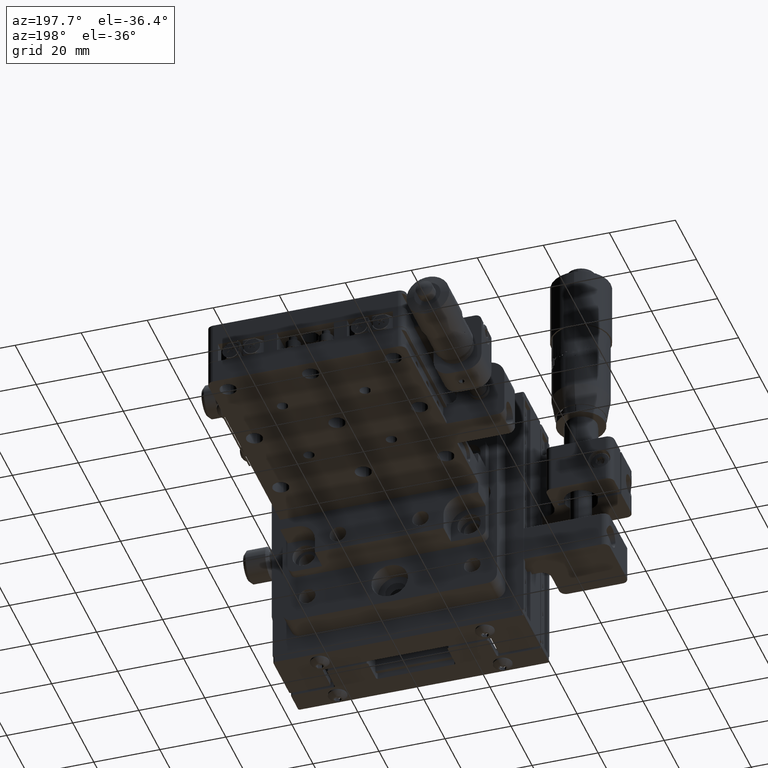
[diagram: clean part render]
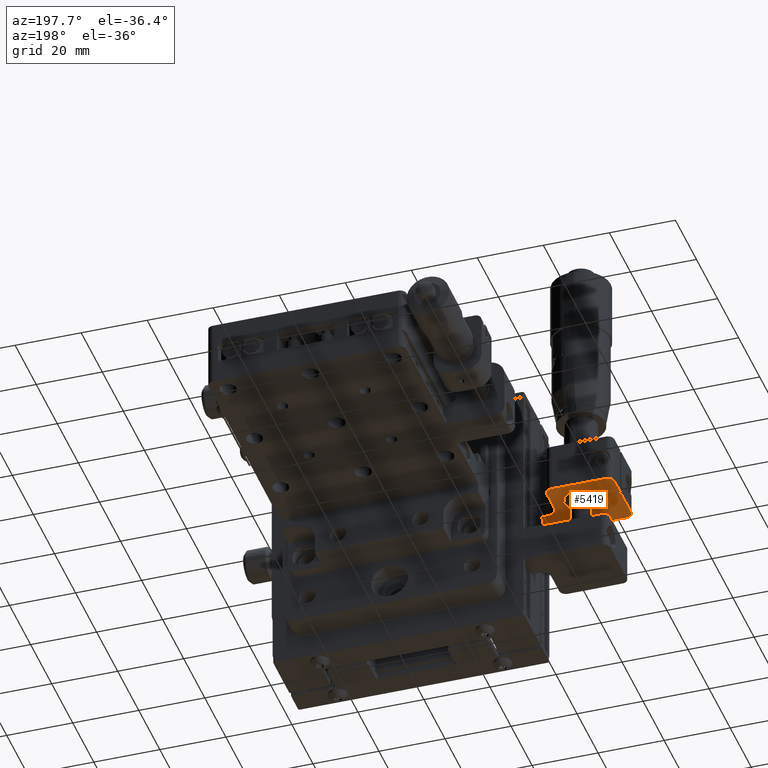
[diagram: same view with one face highlighted and labeled with its STEP entity id]
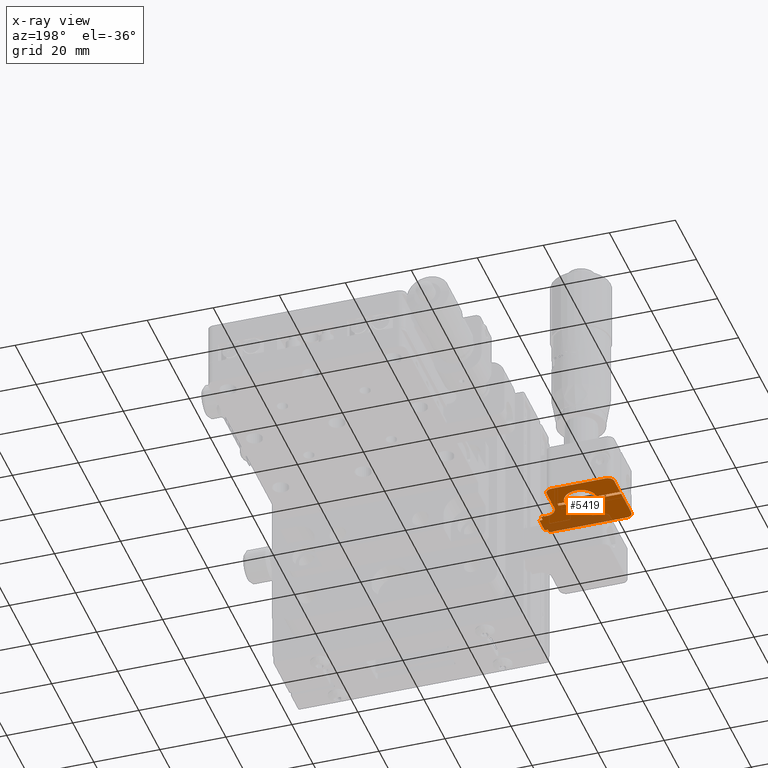
[diagram: x-ray of the same camera — body ghosted, the highlighted face saturated]
A machine part, auxiliary view. The second image highlights one B-rep face of the part: STEP entity #5419.
The next image is the same camera in x-ray: the body ghosted, the highlighted face saturated — about 22% of this face is hidden behind the body in this view.
In plain terms, the highlighted planar face has unit normal (-0, 0, -1).
Its self-contained STEP definition (entity closure, byte-faithful):
#291 = VECTOR ( 'NONE', #62635, 1000.000000000000000 ) ;
#805 = VERTEX_POINT ( 'NONE', #44533 ) ;
#825 = ORIENTED_EDGE ( 'NONE', *, *, #48898, .T. ) ;
#850 = LINE ( 'NONE', #36030, #39668 ) ;
#1160 = VERTEX_POINT ( 'NONE', #36700 ) ;
#1497 = CIRCLE ( 'NONE', #43042, 2.000000000000001800 ) ;
#1977 = ORIENTED_EDGE ( 'NONE', *, *, #40356, .T. ) ;
#2390 = DIRECTION ( 'NONE',  ( 1.049400401618836200E-015, -1.000000000000000000, -5.551115123125770400E-017 ) ) ;
#3502 = VERTEX_POINT ( 'NONE', #46612 ) ;
#3876 = AXIS2_PLACEMENT_3D ( 'NONE', #6916, #42287, #11994 ) ;
#4368 = CIRCLE ( 'NONE', #21253, 3.000000000000002700 ) ;
#4536 = EDGE_CURVE ( 'NONE', #16811, #21917, #56704, .T. ) ;
#4625 = LINE ( 'NONE', #41651, #43382 ) ;
#4947 = CARTESIAN_POINT ( 'NONE',  ( -37.00000000000005000, 1.499999999999361200, 6.499999999999933400 ) ) ;
#5017 = EDGE_CURVE ( 'NONE', #18632, #29193, #4368, .T. ) ;
#5035 = ORIENTED_EDGE ( 'NONE', *, *, #45449, .T. ) ;
#5047 = VECTOR ( 'NONE', #12941, 1000.000000000000000 ) ;
#5419 = ADVANCED_FACE ( 'NONE', ( #20887 ), #47163, .T. ) ;
#5684 = ORIENTED_EDGE ( 'NONE', *, *, #5017, .T. ) ;
#5712 = DIRECTION ( 'NONE',  ( 1.000000000000000000, 2.145893718534002600E-015, -3.538501282865086700E-016 ) ) ;
#5890 = ORIENTED_EDGE ( 'NONE', *, *, #21869, .T. ) ;
#5900 = CARTESIAN_POINT ( 'NONE',  ( -63.50000000000007100, 12.69999999999935100, 6.499999999999944000 ) ) ;
#6230 = AXIS2_PLACEMENT_3D ( 'NONE', #17816, #53177, #22924 ) ;
#6591 = CARTESIAN_POINT ( 'NONE',  ( -61.50000000000005700, 2.199999999999329200, 6.499999999999942300 ) ) ;
#6684 = VECTOR ( 'NONE', #34515, 1000.000000000000000 ) ;
#6916 = CARTESIAN_POINT ( 'NONE',  ( -51.50000000000005700, 12.19999999999936500, 6.499999999999939600 ) ) ;
#7318 = CARTESIAN_POINT ( 'NONE',  ( -38.00000000000004300, 0.1999999999993326600, 6.499999999999934300 ) ) ;
#8241 = EDGE_CURVE ( 'NONE', #30972, #16811, #54962, .T. ) ;
#9601 = CARTESIAN_POINT ( 'NONE',  ( -46.52506281446695600, 12.69999999999937000, 6.499999999999937800 ) ) ;
#10609 = CARTESIAN_POINT ( 'NONE',  ( -38.00000000000005700, 7.999999999999377400, 6.499999999999934300 ) ) ;
#11167 = ORIENTED_EDGE ( 'NONE', *, *, #8241, .T. ) ;
#11456 = CARTESIAN_POINT ( 'NONE',  ( -38.00000000000005000, 6.499999999999375600, 6.499999999999934300 ) ) ;
#11661 = DIRECTION ( 'NONE',  ( -1.000000000000000000, -1.301042606982604100E-015, 4.336808689942013800E-016 ) ) ;
#11672 = LINE ( 'NONE', #29985, #38611 ) ;
#11994 = DIRECTION ( 'NONE',  ( -1.000000000000000000, -1.396345096814188600E-015, 3.538501282865087200E-016 ) ) ;
#12146 = ORIENTED_EDGE ( 'NONE', *, *, #49129, .T. ) ;
#12427 = CARTESIAN_POINT ( 'NONE',  ( -56.47493718553316500, 12.69999999999935600, 6.499999999999941400 ) ) ;
#12560 = CIRCLE ( 'NONE', #55142, 1.999999999999994900 ) ;
#12710 = VERTEX_POINT ( 'NONE', #12427 ) ;
#12822 = LINE ( 'NONE', #27845, #65038 ) ;
#12941 = DIRECTION ( 'NONE',  ( -1.080940828454778300E-015, 1.000000000000000000, 5.551115123125771600E-017 ) ) ;
#13555 = AXIS2_PLACEMENT_3D ( 'NONE', #21304, #56656, #26403 ) ;
#13930 = CARTESIAN_POINT ( 'NONE',  ( -40.00000000000005700, 7.999999999999375600, 6.499999999999935200 ) ) ;
#14092 = EDGE_CURVE ( 'NONE', #59019, #12710, #16388, .T. ) ;
#14621 = VECTOR ( 'NONE', #31370, 1000.000000000000000 ) ;
#14665 = ORIENTED_EDGE ( 'NONE', *, *, #30721, .T. ) ;
#15481 = LINE ( 'NONE', #7318, #27381 ) ;
#15824 = VERTEX_POINT ( 'NONE', #61119 ) ;
#16157 = CARTESIAN_POINT ( 'NONE',  ( -63.50000000000007100, 18.19999999999937800, 6.499999999999944000 ) ) ;
#16388 = CIRCLE ( 'NONE', #13555, 4.999999999999997300 ) ;
#16811 = VERTEX_POINT ( 'NONE', #59651 ) ;
#17618 = CARTESIAN_POINT ( 'NONE',  ( -40.00000000000005700, 10.99999999999937500, 6.499999999999936900 ) ) ;
#17816 = CARTESIAN_POINT ( 'NONE',  ( -51.50000000000005700, 12.19999999999936500, 6.499999999999939600 ) ) ;
#18034 = ORIENTED_EDGE ( 'NONE', *, *, #56618, .T. ) ;
#18166 = EDGE_CURVE ( 'NONE', #54078, #18632, #33539, .T. ) ;
#18252 = EDGE_CURVE ( 'NONE', #48006, #54567, #32708, .T. ) ;
#18492 = VERTEX_POINT ( 'NONE', #54066 ) ;
#18532 = CARTESIAN_POINT ( 'NONE',  ( -38.00000000000005000, 6.499999999999375600, 6.499999999999934300 ) ) ;
#18632 = VERTEX_POINT ( 'NONE', #55380 ) ;
#20145 = CARTESIAN_POINT ( 'NONE',  ( -38.00000000000004300, 1.499999999999359400, 6.499999999999934300 ) ) ;
#20887 = FACE_OUTER_BOUND ( 'NONE', #34626, .T. ) ;
#20933 = AXIS2_PLACEMENT_3D ( 'NONE', #6591, #41957, #11661 ) ;
#21047 = LINE ( 'NONE', #23236, #46356 ) ;
#21253 = AXIS2_PLACEMENT_3D ( 'NONE', #17618, #52964, #22710 ) ;
#21304 = CARTESIAN_POINT ( 'NONE',  ( -51.50000000000005700, 12.19999999999936500, 6.499999999999939600 ) ) ;
#21869 = EDGE_CURVE ( 'NONE', #15824, #59019, #25451, .T. ) ;
#21917 = VERTEX_POINT ( 'NONE', #4947 ) ;
#22574 = VERTEX_POINT ( 'NONE', #55692 ) ;
#22594 = DIRECTION ( 'NONE',  ( 1.396345096814196700E-015, -1.000000000000000000, -5.551115123125782700E-017 ) ) ;
#22710 = DIRECTION ( 'NONE',  ( -1.000000000000000000, -1.156482317317870300E-015, 2.891205793294675900E-016 ) ) ;
#22924 = DIRECTION ( 'NONE',  ( -1.000000000000000000, -1.387778780781446500E-015, 3.469446951953616200E-016 ) ) ;
#23017 = CARTESIAN_POINT ( 'NONE',  ( -61.50000000000007800, 18.19999999999937800, 6.499999999999943200 ) ) ;
#23236 = CARTESIAN_POINT ( 'NONE',  ( -61.50000000000005000, 0.1999999999992996800, 6.499999999999942300 ) ) ;
#23340 = EDGE_CURVE ( 'NONE', #12710, #40522, #11672, .T. ) ;
#24430 = EDGE_CURVE ( 'NONE', #805, #48006, #21047, .T. ) ;
#25032 = EDGE_CURVE ( 'NONE', #40522, #51901, #58842, .T. ) ;
#25451 = LINE ( 'NONE', #9601, #64157 ) ;
#25590 = LINE ( 'NONE', #10609, #52421 ) ;
#26403 = DIRECTION ( 'NONE',  ( -1.000000000000000000, -1.387778780781446500E-015, 3.469446951953616200E-016 ) ) ;
#26785 = VERTEX_POINT ( 'NONE', #56695 ) ;
#27381 = VECTOR ( 'NONE', #22594, 1000.000000000000000 ) ;
#27513 = ORIENTED_EDGE ( 'NONE', *, *, #42803, .T. ) ;
#27779 = LINE ( 'NONE', #11456, #39622 ) ;
#27845 = CARTESIAN_POINT ( 'NONE',  ( -63.50000000000007100, 11.69999999999934900, 6.499999999999944000 ) ) ;
#28025 = CARTESIAN_POINT ( 'NONE',  ( -63.50000000000007100, 18.19999999999937800, 6.499999999999944000 ) ) ;
#28109 = DIRECTION ( 'NONE',  ( -1.000000000000000000, -1.734723475976811400E-015, 4.336808689942028600E-016 ) ) ;
#28314 = DIRECTION ( 'NONE',  ( -1.000000000000000000, -1.396345096814188800E-015, 3.538501282865087700E-016 ) ) ;
#29193 = VERTEX_POINT ( 'NONE', #13930 ) ;
#29234 = CARTESIAN_POINT ( 'NONE',  ( -45.00000000000007100, 20.19999999999942000, 6.499999999999937800 ) ) ;
#29550 = ORIENTED_EDGE ( 'NONE', *, *, #14092, .T. ) ;
#29985 = CARTESIAN_POINT ( 'NONE',  ( -63.50000000000007100, 12.69999999999935100, 6.499999999999944000 ) ) ;
#30019 = CARTESIAN_POINT ( 'NONE',  ( -45.00000000000007100, 18.19999999999940200, 6.499999999999937800 ) ) ;
#30135 = CARTESIAN_POINT ( 'NONE',  ( -46.52506281446695600, 12.69999999999937000, 6.499999999999937800 ) ) ;
#30721 = EDGE_CURVE ( 'NONE', #47430, #36659, #33621, .T. ) ;
#30972 = VERTEX_POINT ( 'NONE', #18532 ) ;
#31370 = DIRECTION ( 'NONE',  ( 1.000000000000000000, 1.396345096814188600E-015, -3.538501282865087200E-016 ) ) ;
#32300 = CARTESIAN_POINT ( 'NONE',  ( -63.50000000000005700, 2.199999999999325600, 6.499999999999943200 ) ) ;
#32369 = CARTESIAN_POINT ( 'NONE',  ( -44.50000000000006400, 12.69999999999937400, 6.499999999999936900 ) ) ;
#32708 = CIRCLE ( 'NONE', #20933, 2.000000000000001800 ) ;
#32746 = CARTESIAN_POINT ( 'NONE',  ( -37.00000000000005000, 1.499999999999361200, 6.499999999999933400 ) ) ;
#33130 = DIRECTION ( 'NONE',  ( -1.396345096814196700E-015, 1.000000000000000000, 5.551115123125782700E-017 ) ) ;
#33539 = LINE ( 'NONE', #61012, #45373 ) ;
#33621 = LINE ( 'NONE', #29234, #6684 ) ;
#33891 = DIRECTION ( 'NONE',  ( 1.000000000000000000, 8.561780258686119800E-016, -3.538501282865087700E-016 ) ) ;
#34515 = DIRECTION ( 'NONE',  ( 1.000000000000000000, 1.396345096814188600E-015, -3.538501282865087200E-016 ) ) ;
#34626 = EDGE_LOOP ( 'NONE', ( #1977, #36128, #18034, #5890, #29550, #41798, #45535, #62121, #14665, #825, #53697, #5684, #61779, #45325, #11167, #50638, #12146, #5035, #38314, #46617, #27513, #55478 ) ) ;
#35103 = DIRECTION ( 'NONE',  ( 1.000000000000000000, 1.734723475976805500E-015, -4.336808689942013800E-016 ) ) ;
#36030 = CARTESIAN_POINT ( 'NONE',  ( -46.52506281446695600, 11.69999999999936900, 6.499999999999937800 ) ) ;
#36128 = ORIENTED_EDGE ( 'NONE', *, *, #54031, .T. ) ;
#36431 = CARTESIAN_POINT ( 'NONE',  ( -37.00000000000005000, 6.499999999999376500, 6.499999999999934300 ) ) ;
#36659 = VERTEX_POINT ( 'NONE', #42330 ) ;
#36700 = CARTESIAN_POINT ( 'NONE',  ( -63.50000000000007100, 11.69999999999934900, 6.499999999999944000 ) ) ;
#38314 = ORIENTED_EDGE ( 'NONE', *, *, #24430, .T. ) ;
#38611 = VECTOR ( 'NONE', #65287, 1000.000000000000000 ) ;
#39622 = VECTOR ( 'NONE', #41726, 1000.000000000000000 ) ;
#39668 = VECTOR ( 'NONE', #5712, 1000.000000000000000 ) ;
#40356 = EDGE_CURVE ( 'NONE', #26785, #18492, #47333, .T. ) ;
#40522 = VERTEX_POINT ( 'NONE', #5900 ) ;
#40886 = DIRECTION ( 'NONE',  ( 1.226274167796863100E-015, -1.000000000000000000, -5.551115123125776500E-017 ) ) ;
#41362 = VERTEX_POINT ( 'NONE', #20145 ) ;
#41651 = CARTESIAN_POINT ( 'NONE',  ( -38.00000000000004300, 1.499999999999359400, 6.499999999999934300 ) ) ;
#41726 = DIRECTION ( 'NONE',  ( 1.396345096814196700E-015, -1.000000000000000000, -5.551115123125782700E-017 ) ) ;
#41798 = ORIENTED_EDGE ( 'NONE', *, *, #23340, .T. ) ;
#41957 = DIRECTION ( 'NONE',  ( -3.538501282865090600E-016, 5.551115123125782700E-017, -1.000000000000000000 ) ) ;
#42287 = DIRECTION ( 'NONE',  ( -3.538501282865088200E-016, 5.551115123125782700E-017, -1.000000000000000000 ) ) ;
#42330 = CARTESIAN_POINT ( 'NONE',  ( -45.00000000000007100, 20.19999999999942000, 6.499999999999937800 ) ) ;
#42803 = EDGE_CURVE ( 'NONE', #54567, #1160, #12822, .T. ) ;
#43042 = AXIS2_PLACEMENT_3D ( 'NONE', #30019, #65328, #35103 ) ;
#43245 = VECTOR ( 'NONE', #2390, 1000.000000000000000 ) ;
#43382 = VECTOR ( 'NONE', #46546, 1000.000000000000000 ) ;
#44533 = CARTESIAN_POINT ( 'NONE',  ( -38.00000000000004300, 0.1999999999993326600, 6.499999999999934300 ) ) ;
#45325 = ORIENTED_EDGE ( 'NONE', *, *, #48515, .T. ) ;
#45373 = VECTOR ( 'NONE', #40886, 1000.000000000000000 ) ;
#45449 = EDGE_CURVE ( 'NONE', #41362, #805, #15481, .T. ) ;
#45535 = ORIENTED_EDGE ( 'NONE', *, *, #25032, .T. ) ;
#46356 = VECTOR ( 'NONE', #28314, 1000.000000000000000 ) ;
#46546 = DIRECTION ( 'NONE',  ( -1.000000000000000000, -1.396345096814188600E-015, 3.538501282865087200E-016 ) ) ;
#46612 = CARTESIAN_POINT ( 'NONE',  ( -44.50000000000005700, 11.69999999999937600, 6.499999999999936900 ) ) ;
#46617 = ORIENTED_EDGE ( 'NONE', *, *, #18252, .T. ) ;
#47163 = PLANE ( 'NONE',  #3876 ) ;
#47333 = CIRCLE ( 'NONE', #6230, 4.999999999999997300 ) ;
#47430 = VERTEX_POINT ( 'NONE', #51927 ) ;
#48006 = VERTEX_POINT ( 'NONE', #65485 ) ;
#48515 = EDGE_CURVE ( 'NONE', #22574, #30972, #27779, .T. ) ;
#48877 = CARTESIAN_POINT ( 'NONE',  ( -63.50000000000007100, 11.69999999999934900, 6.499999999999944000 ) ) ;
#48898 = EDGE_CURVE ( 'NONE', #36659, #54078, #1497, .T. ) ;
#49129 = EDGE_CURVE ( 'NONE', #21917, #41362, #4625, .T. ) ;
#50250 = DIRECTION ( 'NONE',  ( -1.000000000000000000, -2.252972093065404200E-015, 3.538501282865086700E-016 ) ) ;
#50638 = ORIENTED_EDGE ( 'NONE', *, *, #4536, .T. ) ;
#51901 = VERTEX_POINT ( 'NONE', #16157 ) ;
#51927 = CARTESIAN_POINT ( 'NONE',  ( -61.50000000000007800, 20.19999999999939500, 6.499999999999944000 ) ) ;
#52085 = EDGE_CURVE ( 'NONE', #51901, #47430, #12560, .T. ) ;
#52421 = VECTOR ( 'NONE', #55910, 1000.000000000000000 ) ;
#52535 = LINE ( 'NONE', #32369, #291 ) ;
#52964 = DIRECTION ( 'NONE',  ( 3.538501282865090600E-016, -5.551115123125782700E-017, 1.000000000000000000 ) ) ;
#53177 = DIRECTION ( 'NONE',  ( 3.538501282865090600E-016, -5.551115123125782700E-017, 1.000000000000000000 ) ) ;
#53504 = LINE ( 'NONE', #48877, #65386 ) ;
#53697 = ORIENTED_EDGE ( 'NONE', *, *, #18166, .T. ) ;
#54031 = EDGE_CURVE ( 'NONE', #18492, #3502, #850, .T. ) ;
#54066 = CARTESIAN_POINT ( 'NONE',  ( -46.52506281446695600, 11.69999999999936900, 6.499999999999937800 ) ) ;
#54078 = VERTEX_POINT ( 'NONE', #61003 ) ;
#54567 = VERTEX_POINT ( 'NONE', #32300 ) ;
#54962 = LINE ( 'NONE', #36431, #14621 ) ;
#55142 = AXIS2_PLACEMENT_3D ( 'NONE', #23017, #58366, #28109 ) ;
#55380 = CARTESIAN_POINT ( 'NONE',  ( -43.00000000000005000, 10.99999999999937100, 6.499999999999936100 ) ) ;
#55478 = ORIENTED_EDGE ( 'NONE', *, *, #65133, .T. ) ;
#55692 = CARTESIAN_POINT ( 'NONE',  ( -38.00000000000005700, 7.999999999999377400, 6.499999999999934300 ) ) ;
#55910 = DIRECTION ( 'NONE',  ( 1.000000000000000000, 1.222872749216507300E-015, -3.538501282865087200E-016 ) ) ;
#56618 = EDGE_CURVE ( 'NONE', #3502, #15824, #52535, .T. ) ;
#56656 = DIRECTION ( 'NONE',  ( 3.538501282865090600E-016, -5.551115123125782700E-017, 1.000000000000000000 ) ) ;
#56695 = CARTESIAN_POINT ( 'NONE',  ( -56.47493718553316500, 11.69999999999935400, 6.499999999999941400 ) ) ;
#56704 = LINE ( 'NONE', #32746, #43245 ) ;
#58366 = DIRECTION ( 'NONE',  ( -3.538501282865090600E-016, 5.551115123125782700E-017, -1.000000000000000000 ) ) ;
#58842 = LINE ( 'NONE', #28025, #5047 ) ;
#59019 = VERTEX_POINT ( 'NONE', #30135 ) ;
#59651 = CARTESIAN_POINT ( 'NONE',  ( -37.00000000000005000, 6.499999999999376500, 6.499999999999934300 ) ) ;
#61003 = CARTESIAN_POINT ( 'NONE',  ( -43.00000000000006400, 18.19999999999940200, 6.499999999999936900 ) ) ;
#61012 = CARTESIAN_POINT ( 'NONE',  ( -43.00000000000005000, 7.999999999999370300, 6.499999999999936100 ) ) ;
#61119 = CARTESIAN_POINT ( 'NONE',  ( -44.50000000000006400, 12.69999999999937400, 6.499999999999936900 ) ) ;
#61779 = ORIENTED_EDGE ( 'NONE', *, *, #63998, .T. ) ;
#62121 = ORIENTED_EDGE ( 'NONE', *, *, #52085, .T. ) ;
#62635 = DIRECTION ( 'NONE',  ( -1.396345096814196700E-015, 1.000000000000000000, 5.551115123125782700E-017 ) ) ;
#63998 = EDGE_CURVE ( 'NONE', #29193, #22574, #25590, .T. ) ;
#64157 = VECTOR ( 'NONE', #50250, 1000.000000000000000 ) ;
#65038 = VECTOR ( 'NONE', #33130, 1000.000000000000000 ) ;
#65133 = EDGE_CURVE ( 'NONE', #1160, #26785, #53504, .T. ) ;
#65287 = DIRECTION ( 'NONE',  ( -1.000000000000000000, -8.407446809844526300E-016, 3.538501282865088200E-016 ) ) ;
#65328 = DIRECTION ( 'NONE',  ( -3.538501282865090600E-016, 5.551115123125782700E-017, -1.000000000000000000 ) ) ;
#65386 = VECTOR ( 'NONE', #33891, 1000.000000000000000 ) ;
#65485 = CARTESIAN_POINT ( 'NONE',  ( -61.50000000000005000, 0.1999999999993031800, 6.499999999999942300 ) ) ;